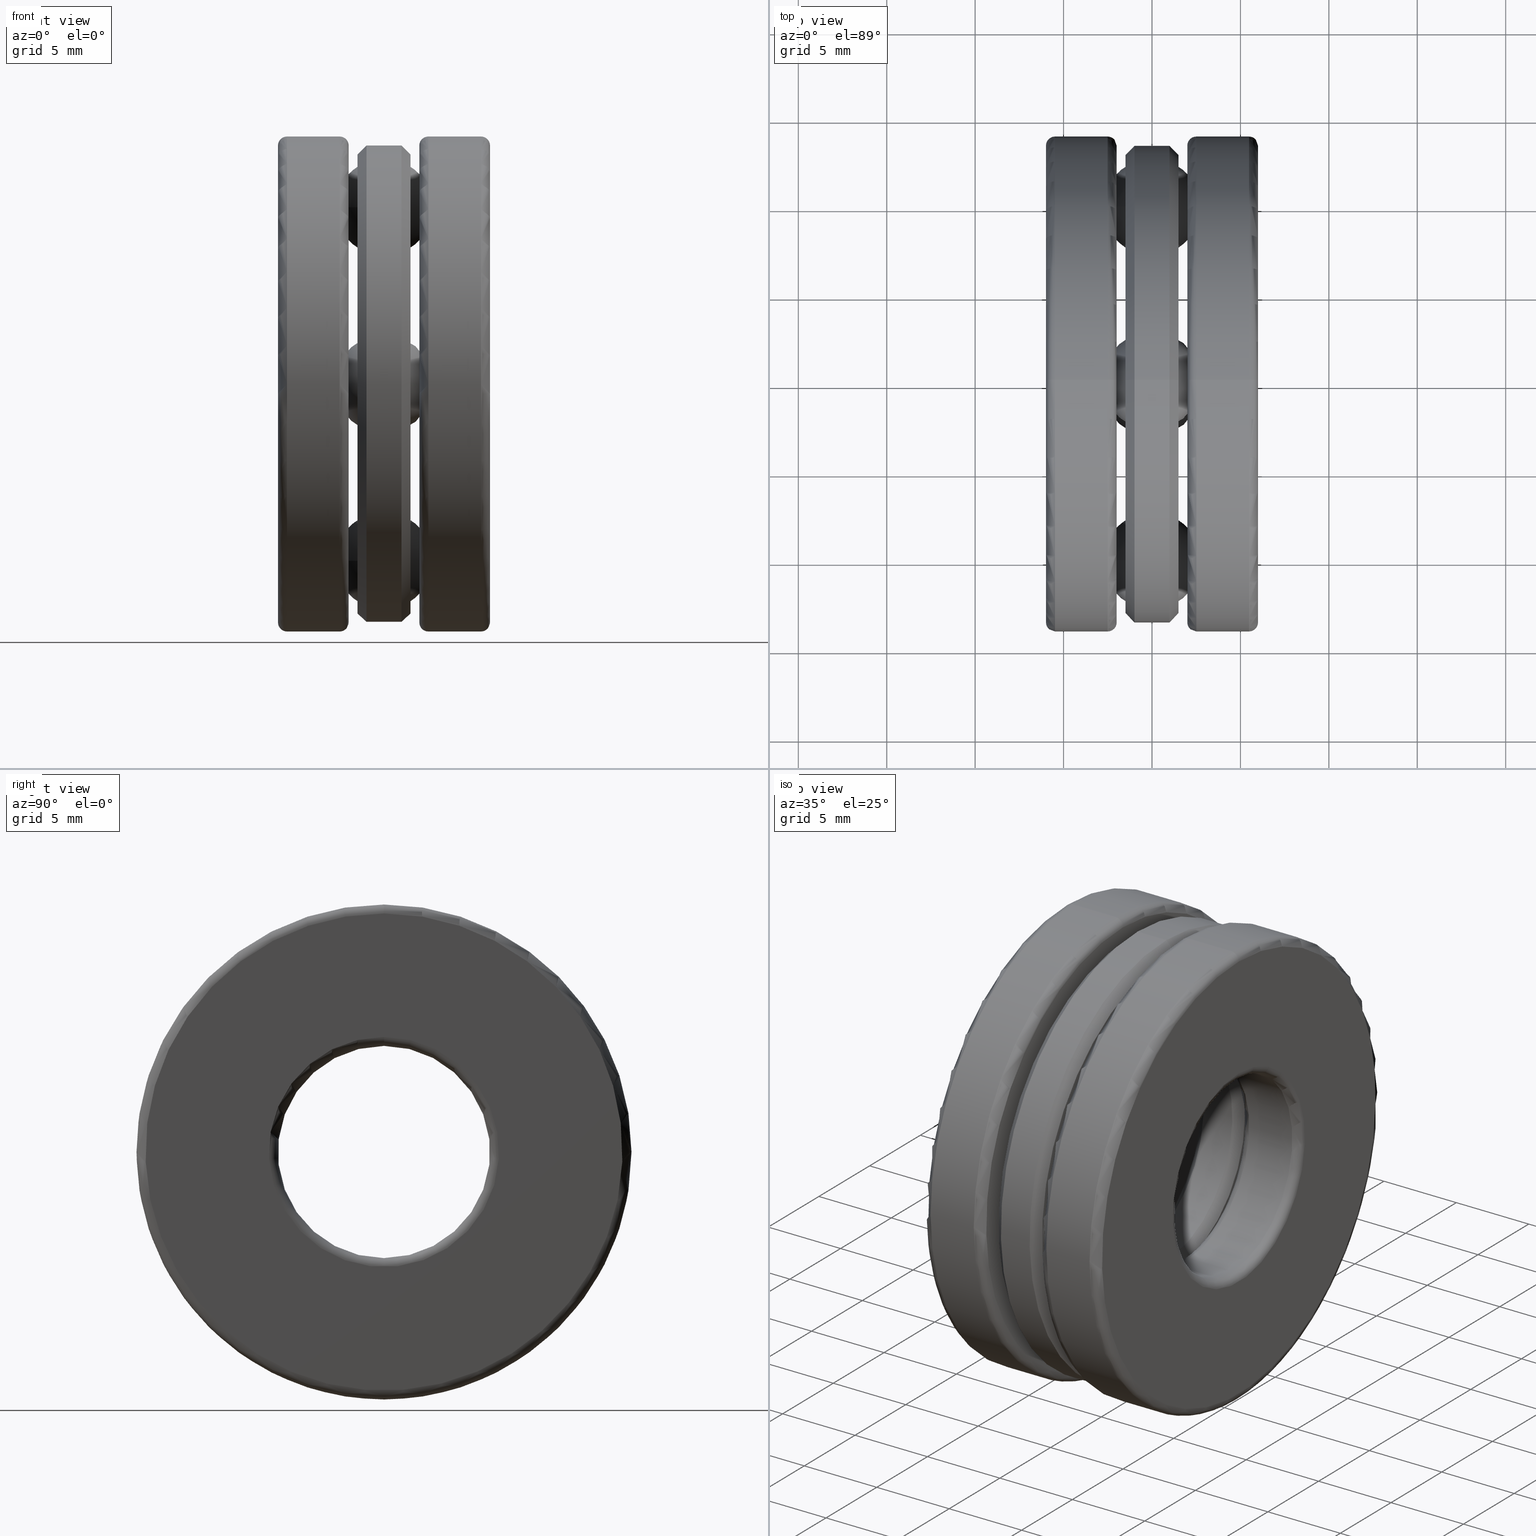
[diagram: canonical four-view strip — front | top / right | iso, engineering-drawing reading convention]
A machine part, canonical four-view strip (front | top / right | iso — engineering-drawing reading convention). The complete STEP part file that produces these views, byte-faithful:
ISO-10303-21;
HEADER;
FILE_DESCRIPTION (( 'STEP AP203' ),
    '1' );
FILE_NAME ('2901.STEP',
    '2017-03-21T12:18:39',
    ( '' ),
    ( '' ),
    'SwSTEP 2.0',
    'SolidWorks 2017',
    '' );
FILE_SCHEMA (( 'CONFIG_CONTROL_DESIGN' ));
ENDSEC;

DATA;
#1 = DIRECTION ( 'NONE',  ( -1.000000000000000000, -0.0000000000000000000, -0.0000000000000000000 ) ) ;
#2 = EDGE_LOOP ( 'NONE', ( #385 ) ) ;
#3 = TOROIDAL_SURFACE ( 'NONE', #74, 0.2562204724409448700, 0.01999999999999995900 ) ;
#4 = DATE_TIME_ROLE ( 'classification_date' ) ;
#5 = CARTESIAN_POINT ( 'NONE',  ( -0.07866823999999994500, 0.0000000000000000000, 0.0000000000000000000 ) ) ;
#6 = VERTEX_POINT ( 'NONE', #744 ) ;
#7 = EDGE_CURVE ( 'NONE', #526, #526, #804, .T. ) ;
#8 = AXIS2_PLACEMENT_3D ( 'NONE', #79, #348, #602 ) ;
#9 = EDGE_LOOP ( 'NONE', ( #27 ) ) ;
#10 = EDGE_LOOP ( 'NONE', ( #22 ) ) ;
#11 = TOROIDAL_SURFACE ( 'NONE', #323, 0.5310000000000000300, 0.01999999999999999000 ) ;
#12 = DIRECTION ( 'NONE',  ( 0.0000000000000000000, 0.0000000000000000000, -1.000000000000000000 ) ) ;
#13 = ORIENTED_EDGE ( 'NONE', *, *, #658, .F. ) ;
#14 = MANIFOLD_SOLID_BREP ( 'BALLS[1]', #487 ) ;
#15 = VERTEX_POINT ( 'NONE', #51 ) ;
#16 = CARTESIAN_POINT ( 'NONE',  ( -0.07866823999999994500, 0.0000000000000000000, 0.0000000000000000000 ) ) ;
#17 = AXIS2_PLACEMENT_3D ( 'NONE', #290, #596, #360 ) ;
#18 = ORIENTED_EDGE ( 'NONE', *, *, #605, .T. ) ;
#19 = ORIENTED_EDGE ( 'NONE', *, *, #342, .T. ) ;
#20 = DIRECTION ( 'NONE',  ( -1.000000000000000000, -0.0000000000000000000, -0.0000000000000000000 ) ) ;
#21 = FACE_OUTER_BOUND ( 'NONE', #188, .T. ) ;
#22 = ORIENTED_EDGE ( 'NONE', *, *, #605, .F. ) ;
#23 = FACE_BOUND ( 'NONE', #513, .T. ) ;
#24 = DIRECTION ( 'NONE',  ( 0.0000000000000000000, 0.0000000000000000000, 1.000000000000000000 ) ) ;
#25 = CIRCLE ( 'NONE', #48, 0.5310000000000001400 ) ;
#26 = DIRECTION ( 'NONE',  ( -1.000000000000000000, 0.0000000000000000000, -0.0000000000000000000 ) ) ;
#27 = ORIENTED_EDGE ( 'NONE', *, *, #314, .T. ) ;
#28 = FACE_OUTER_BOUND ( 'NONE', #102, .T. ) ;
#29 = AXIS2_PLACEMENT_3D ( 'NONE', #64, #709, #65 ) ;
#30 = DIRECTION ( 'NONE',  ( 1.000000000000000000, 0.0000000000000000000, 0.0000000000000000000 ) ) ;
#31 = ADVANCED_BREP_SHAPE_REPRESENTATION ( '2901', ( #571, #289, #211, #157, #14, #302, #798, #566 ), #197 ) ;
#32 = DIRECTION ( 'NONE',  ( 1.000000000000000000, 0.0000000000000000000, 0.0000000000000000000 ) ) ;
#33 = EDGE_LOOP ( 'NONE', ( #731 ) ) ;
#34 = ADVANCED_FACE ( 'NONE', ( #648, #639 ), #299, .T. ) ;
#35 = FACE_OUTER_BOUND ( 'NONE', #2, .T. ) ;
#36 = FACE_OUTER_BOUND ( 'NONE', #763, .T. ) ;
#37 = PERSON_AND_ORGANIZATION ( #201, #690 ) ;
#38 = AXIS2_PLACEMENT_3D ( 'NONE', #615, #558, #808 ) ;
#39 = DIRECTION ( 'NONE',  ( -1.000000000000000000, -0.0000000000000000000, -0.0000000000000000000 ) ) ;
#40 = DIRECTION ( 'NONE',  ( 1.000000000000000000, 0.0000000000000000000, 0.0000000000000000000 ) ) ;
#41 = SECURITY_CLASSIFICATION ( '', '', #198 ) ;
#42 = CARTESIAN_POINT ( 'NONE',  ( 0.03900000000000004200, 0.0000000000000000000, 0.2562204724409448700 ) ) ;
#43 = DIRECTION ( 'NONE',  ( 0.0000000000000000000, 0.0000000000000000000, -1.000000000000000000 ) ) ;
#44 = CYLINDRICAL_SURFACE ( 'NONE', #70, 0.2562204724409448700 ) ;
#45 = CARTESIAN_POINT ( 'NONE',  ( 0.09866824000000055900, 0.0000000000000000000, 0.2362204724409449100 ) ) ;
#46 = ADVANCED_FACE ( 'NONE', ( #754, #469 ), #730, .F. ) ;
#47 = DIRECTION ( 'NONE',  ( 0.0000000000000000000, 0.0000000000000000000, 1.000000000000000000 ) ) ;
#48 = AXIS2_PLACEMENT_3D ( 'NONE', #242, #39, #608 ) ;
#49 = APPROVAL_STATUS ( 'not_yet_approved' ) ;
#50 = CARTESIAN_POINT ( 'NONE',  ( 0.09866824000000055900, 0.0000000000000000000, 0.0000000000000000000 ) ) ;
#51 = CARTESIAN_POINT ( 'NONE',  ( -0.2160000000000000000, 0.0000000000000000000, 0.5510000000000000500 ) ) ;
#52 = ORIENTED_EDGE ( 'NONE', *, *, #171, .T. ) ;
#53 = EDGE_LOOP ( 'NONE', ( #604 ) ) ;
#54 = DIRECTION ( 'NONE',  ( 0.0000000000000000000, 0.0000000000000000000, 1.000000000000000000 ) ) ;
#55 = CIRCLE ( 'NONE', #613, 0.2362204724409449100 ) ;
#56 =( NAMED_UNIT ( * ) PLANE_ANGLE_UNIT ( ) SI_UNIT ( $, .RADIAN. ) );
#57 = CLOSED_SHELL ( 'NONE', ( #425 ) ) ;
#58 = CIRCLE ( 'NONE', #17, 0.5509999999999999300 ) ;
#59 = APPROVAL_DATE_TIME ( #320, #823 ) ;
#60 = DESIGN_CONTEXT ( 'detailed design', #390, 'design' ) ;
#61 = UNCERTAINTY_MEASURE_WITH_UNIT (LENGTH_MEASURE( 1.000000000000000100E-005 ), #626, 'distance_accuracy_value', 'NONE');
#62 = FACE_OUTER_BOUND ( 'NONE', #313, .T. ) ;
#63 = PLANE ( 'NONE',  #29 ) ;
#64 = CARTESIAN_POINT ( 'NONE',  ( 0.07866824000000059700, -4.888229745457297900E-018, 0.0000000000000000000 ) ) ;
#65 = DIRECTION ( 'NONE',  ( 0.0000000000000000000, 0.0000000000000000000, -1.000000000000000000 ) ) ;
#66 = EDGE_LOOP ( 'NONE', ( #597 ) ) ;
#67 = APPROVAL_ROLE ( '' ) ;
#68 = FACE_BOUND ( 'NONE', #725, .T. ) ;
#69 = DIRECTION ( 'NONE',  ( -1.000000000000000000, -0.0000000000000000000, -0.0000000000000000000 ) ) ;
#70 = AXIS2_PLACEMENT_3D ( 'NONE', #758, #133, #392 ) ;
#71 = DIRECTION ( 'NONE',  ( 1.000000000000000000, 0.0000000000000000000, 0.0000000000000000000 ) ) ;
#72 = ORIENTED_EDGE ( 'NONE', *, *, #784, .T. ) ;
#73 = FACE_OUTER_BOUND ( 'NONE', #410, .T. ) ;
#74 = AXIS2_PLACEMENT_3D ( 'NONE', #153, #539, #414 ) ;
#75 = EDGE_LOOP ( 'NONE', ( #655 ) ) ;
#76 = PERSON_AND_ORGANIZATION ( #201, #690 ) ;
#77 = CARTESIAN_POINT ( 'NONE',  ( -0.05900000000000000400, 0.3936102362204724800, -8.611099146760528000E-018 ) ) ;
#78 = CIRCLE ( 'NONE', #759, 0.5310000000000000300 ) ;
#79 = CARTESIAN_POINT ( 'NONE',  ( 0.0000000000000000000, 0.0000000000000000000, 0.0000000000000000000 ) ) ;
#80 = AXIS2_PLACEMENT_3D ( 'NONE', #89, #794, #224 ) ;
#81 = DIRECTION ( 'NONE',  ( 0.0000000000000000000, 0.0000000000000000000, 1.000000000000000000 ) ) ;
#82 = ORIENTED_EDGE ( 'NONE', *, *, #463, .T. ) ;
#83 = EDGE_CURVE ( 'NONE', #681, #681, #782, .T. ) ;
#84 = CIRCLE ( 'NONE', #769, 0.1145000000000000000 ) ;
#85 = CC_DESIGN_PERSON_AND_ORGANIZATION_ASSIGNMENT ( #37, #271, ( #660 ) ) ;
#86 = DIRECTION ( 'NONE',  ( -1.000000000000000000, -0.0000000000000000000, -0.0000000000000000000 ) ) ;
#87 = CALENDAR_DATE ( 2017, 21, 3 ) ;
#88 = TOROIDAL_SURFACE ( 'NONE', #99, 0.5310000000000000300, 0.01999999999999970200 ) ;
#89 = CARTESIAN_POINT ( 'NONE',  ( 0.07866824000000058300, 0.0000000000000000000, 0.0000000000000000000 ) ) ;
#90 = EDGE_LOOP ( 'NONE', ( #628 ) ) ;
#91 = CARTESIAN_POINT ( 'NONE',  ( 0.2360000000000003200, 0.0000000000000000000, 0.0000000000000000000 ) ) ;
#92 = DIRECTION ( 'NONE',  ( 1.000000000000000000, 0.0000000000000000000, 0.0000000000000000000 ) ) ;
#93 = FACE_OUTER_BOUND ( 'NONE', #699, .T. ) ;
#94 = AXIS2_PLACEMENT_3D ( 'NONE', #795, #92, #547 ) ;
#95 = DIRECTION ( 'NONE',  ( -1.000000000000000000, -0.0000000000000000000, -0.0000000000000000000 ) ) ;
#96 = ADVANCED_FACE ( 'NONE', ( #93, #255 ), #503, .F. ) ;
#97 = FACE_OUTER_BOUND ( 'NONE', #388, .T. ) ;
#98 = EDGE_CURVE ( 'NONE', #287, #287, #336, .T. ) ;
#99 = AXIS2_PLACEMENT_3D ( 'NONE', #475, #86, #352 ) ;
#100 = CARTESIAN_POINT ( 'NONE',  ( 0.2360000000000002900, 2.932879189690569000E-017, 0.0000000000000000000 ) ) ;
#101 = EDGE_LOOP ( 'NONE', ( #479 ) ) ;
#102 = EDGE_LOOP ( 'NONE', ( #770 ) ) ;
#103 = ORIENTED_EDGE ( 'NONE', *, *, #821, .F. ) ;
#104 = DIRECTION ( 'NONE',  ( 1.000000000000000000, -0.0000000000000000000, -0.0000000000000000000 ) ) ;
#105 = FACE_OUTER_BOUND ( 'NONE', #415, .T. ) ;
#106 = DIRECTION ( 'NONE',  ( 0.0000000000000000000, 0.0000000000000000000, 1.000000000000000000 ) ) ;
#107 = CARTESIAN_POINT ( 'NONE',  ( 0.09866824000000055900, 0.0000000000000000000, 0.5509999999999999300 ) ) ;
#108 = FACE_OUTER_BOUND ( 'NONE', #344, .T. ) ;
#109 = DIRECTION ( 'NONE',  ( 0.0000000000000000000, 0.0000000000000000000, 1.000000000000000000 ) ) ;
#110 = ADVANCED_FACE ( 'NONE', ( #417, #735 ), #231, .F. ) ;
#111 = CARTESIAN_POINT ( 'NONE',  ( -0.05900000000000000400, 0.3936102362204724800, -0.1145000000000000200 ) ) ;
#112 = CARTESIAN_POINT ( 'NONE',  ( -0.05899999999999998300, 0.0000000000000000000, 0.0000000000000000000 ) ) ;
#113 = EDGE_LOOP ( 'NONE', ( #395 ) ) ;
#114 = AXIS2_PLACEMENT_3D ( 'NONE', #578, #760, #450 ) ;
#115 = ORIENTED_EDGE ( 'NONE', *, *, #636, .T. ) ;
#116 = CARTESIAN_POINT ( 'NONE',  ( -0.03900000000000000700, 0.0000000000000000000, 0.5310000000000001400 ) ) ;
#117 = ADVANCED_FACE ( 'NONE', ( #156, #452 ), #317, .T. ) ;
#118 = EDGE_LOOP ( 'NONE', ( #533 ) ) ;
#119 = DIRECTION ( 'NONE',  ( 1.000000000000000000, 0.0000000000000000000, 0.0000000000000000000 ) ) ;
#120 = FACE_OUTER_BOUND ( 'NONE', #152, .T. ) ;
#121 = ORIENTED_EDGE ( 'NONE', *, *, #658, .T. ) ;
#122 = EDGE_CURVE ( 'NONE', #650, #650, #570, .T. ) ;
#123 = LOCAL_TIME ( 8, 18, 39.00000000000000000, #633 ) ;
#124 = DIRECTION ( 'NONE',  ( 0.0000000000000000000, 0.0000000000000000000, 1.000000000000000000 ) ) ;
#125 = APPROVAL ( #394, 'UNSPECIFIED' ) ;
#126 = VERTEX_POINT ( 'NONE', #173 ) ;
#127 = MECHANICAL_CONTEXT ( 'NONE', #250, 'mechanical' ) ;
#128 = CARTESIAN_POINT ( 'NONE',  ( 0.07866824000000058300, 0.0000000000000000000, 0.0000000000000000000 ) ) ;
#129 = EDGE_LOOP ( 'NONE', ( #402 ) ) ;
#130 = DIRECTION ( 'NONE',  ( 0.0000000000000000000, 0.0000000000000000000, 1.000000000000000000 ) ) ;
#131 = TOROIDAL_SURFACE ( 'NONE', #632, 0.3936102362204725300, 0.1105000000000000000 ) ;
#132 = VERTEX_POINT ( 'NONE', #434 ) ;
#133 = DIRECTION ( 'NONE',  ( -1.000000000000000000, -0.0000000000000000000, -0.0000000000000000000 ) ) ;
#134 = EDGE_LOOP ( 'NONE', ( #178 ) ) ;
#135 = AXIS2_PLACEMENT_3D ( 'NONE', #620, #307, #555 ) ;
#136 = CARTESIAN_POINT ( 'NONE',  ( -0.09866823999999993500, 0.0000000000000000000, 0.0000000000000000000 ) ) ;
#137 = EDGE_LOOP ( 'NONE', ( #399 ) ) ;
#138 = FACE_OUTER_BOUND ( 'NONE', #90, .T. ) ;
#139 = ORIENTED_EDGE ( 'NONE', *, *, #270, .T. ) ;
#140 = DIRECTION ( 'NONE',  ( 0.0000000000000000000, 0.0000000000000000000, 1.000000000000000000 ) ) ;
#141 = COORDINATED_UNIVERSAL_TIME_OFFSET ( 5, 0, .BEHIND. ) ;
#142 = CARTESIAN_POINT ( 'NONE',  ( -0.05899999999999999700, 0.5110000000000001200, 0.0000000000000000000 ) ) ;
#143 = EDGE_LOOP ( 'NONE', ( #762 ) ) ;
#144 = EDGE_CURVE ( 'NONE', #721, #721, #209, .T. ) ;
#145 = EDGE_LOOP ( 'NONE', ( #19 ) ) ;
#146 = CC_DESIGN_PERSON_AND_ORGANIZATION_ASSIGNMENT ( #246, #703, ( #41 ) ) ;
#147 = DIRECTION ( 'NONE',  ( 0.0000000000000000000, 0.0000000000000000000, 1.000000000000000000 ) ) ;
#148 = EDGE_LOOP ( 'NONE', ( #18 ) ) ;
#149 = CONICAL_SURFACE ( 'NONE', #460, 0.5110000000000001200, 0.7853981633974482800 ) ;
#150 = CARTESIAN_POINT ( 'NONE',  ( -0.07866823999999994500, 0.0000000000000000000, 0.0000000000000000000 ) ) ;
#151 = CARTESIAN_POINT ( 'NONE',  ( -0.2160000000000000000, 0.0000000000000000000, 0.0000000000000000000 ) ) ;
#152 = EDGE_LOOP ( 'NONE', ( #750 ) ) ;
#153 = CARTESIAN_POINT ( 'NONE',  ( -0.2160000000000000000, 0.0000000000000000000, 0.0000000000000000000 ) ) ;
#154 = EDGE_LOOP ( 'NONE', ( #207 ) ) ;
#155 = AXIS2_PLACEMENT_3D ( 'NONE', #372, #179, #746 ) ;
#156 = FACE_OUTER_BOUND ( 'NONE', #688, .T. ) ;
#157 = MANIFOLD_SOLID_BREP ( 'HOLES', #328 ) ;
#158 = DIRECTION ( 'NONE',  ( 0.0000000000000000000, 0.0000000000000000000, -1.000000000000000000 ) ) ;
#159 = CARTESIAN_POINT ( 'NONE',  ( -0.2359999999999999600, -0.3936102362204724800, -3.959225244314298700E-017 ) ) ;
#160 = ADVANCED_FACE ( 'NONE', ( #482, #616 ), #498, .F. ) ;
#161 = ORIENTED_EDGE ( 'NONE', *, *, #494, .F. ) ;
#162 = DIRECTION ( 'NONE',  ( 0.0000000000000000000, 0.0000000000000000000, -1.000000000000000000 ) ) ;
#163 = FACE_BOUND ( 'NONE', #630, .T. ) ;
#164 = ORIENTED_EDGE ( 'NONE', *, *, #282, .F. ) ;
#165 = FACE_BOUND ( 'NONE', #252, .T. ) ;
#166 = LOCAL_TIME ( 8, 18, 39.00000000000000000, #702 ) ;
#167 = DIRECTION ( 'NONE',  ( 0.0000000000000000000, 0.0000000000000000000, 1.000000000000000000 ) ) ;
#168 = VERTEX_POINT ( 'NONE', #564 ) ;
#169 = DIRECTION ( 'NONE',  ( 0.0000000000000000000, 0.0000000000000000000, 1.000000000000000000 ) ) ;
#170 = DIRECTION ( 'NONE',  ( 0.0000000000000000000, 0.0000000000000000000, -1.000000000000000000 ) ) ;
#171 = EDGE_CURVE ( 'NONE', #599, #599, #229, .T. ) ;
#172 = PRODUCT_RELATED_PRODUCT_CATEGORY ( 'detail', '', ( #273 ) ) ;
#173 = CARTESIAN_POINT ( 'NONE',  ( -0.09866823999999993500, 0.0000000000000000000, 0.5510000000000000500 ) ) ;
#174 = ADVANCED_FACE ( 'NONE', ( #163, #208 ), #581, .T. ) ;
#175 = FACE_OUTER_BOUND ( 'NONE', #148, .T. ) ;
#176 = DIRECTION ( 'NONE',  ( 0.0000000000000000000, 0.0000000000000000000, 1.000000000000000000 ) ) ;
#177 = EDGE_CURVE ( 'NONE', #775, #775, #726, .T. ) ;
#178 = ORIENTED_EDGE ( 'NONE', *, *, #673, .F. ) ;
#179 = DIRECTION ( 'NONE',  ( -1.000000000000000000, -0.0000000000000000000, -0.0000000000000000000 ) ) ;
#180 = AXIS2_PLACEMENT_3D ( 'NONE', #677, #489, #683 ) ;
#181 = ADVANCED_FACE ( 'NONE', ( #175, #416 ), #710, .F. ) ;
#182 = DIRECTION ( 'NONE',  ( -1.000000000000000000, -0.0000000000000000000, -0.0000000000000000000 ) ) ;
#183 = VERTEX_POINT ( 'NONE', #319 ) ;
#184 = DIRECTION ( 'NONE',  ( 0.0000000000000000000, 0.0000000000000000000, 1.000000000000000000 ) ) ;
#185 = PERSON_AND_ORGANIZATION_ROLE ( 'creator' ) ;
#186 = CARTESIAN_POINT ( 'NONE',  ( 0.09866824000000055900, 0.0000000000000000000, 0.0000000000000000000 ) ) ;
#187 = AXIS2_PLACEMENT_3D ( 'NONE', #206, #524, #652 ) ;
#188 = EDGE_LOOP ( 'NONE', ( #164 ) ) ;
#189 =( LENGTH_UNIT ( ) NAMED_UNIT ( * ) SI_UNIT ( $, .METRE. ) );
#190 = DIRECTION ( 'NONE',  ( -1.000000000000000000, -0.0000000000000000000, -0.0000000000000000000 ) ) ;
#191 = TOROIDAL_SURFACE ( 'NONE', #266, 0.2562204724409449200, 0.01999999999999971900 ) ;
#192 = EDGE_LOOP ( 'NONE', ( #654 ) ) ;
#193 = FACE_OUTER_BOUND ( 'NONE', #715, .T. ) ;
#194 = EDGE_CURVE ( 'NONE', #680, #680, #200, .T. ) ;
#195 = PERSON_AND_ORGANIZATION ( #201, #690 ) ;
#196 = DIRECTION ( 'NONE',  ( -1.000000000000000000, -0.0000000000000000000, -0.0000000000000000000 ) ) ;
#197 =( GEOMETRIC_REPRESENTATION_CONTEXT ( 3 ) GLOBAL_UNCERTAINTY_ASSIGNED_CONTEXT ( ( #61 ) ) GLOBAL_UNIT_ASSIGNED_CONTEXT ( ( #626, #56, #380 ) ) REPRESENTATION_CONTEXT ( 'NONE', 'WORKASPACE' ) );
#198 = SECURITY_CLASSIFICATION_LEVEL ( 'unclassified' ) ;
#199 = EDGE_LOOP ( 'NONE', ( #275 ) ) ;
#200 = CIRCLE ( 'NONE', #261, 0.5310000000000000300 ) ;
#201 = PERSON ( 'UNSPECIFIED', 'UNSPECIFIED', 'UNSPECIFIED', ('UNSPECIFIED'), ('UNSPECIFIED'), ('UNSPECIFIED') ) ;
#202 = CYLINDRICAL_SURFACE ( 'NONE', #438, 0.2362204724409450200 ) ;
#203 = AXIS2_PLACEMENT_3D ( 'NONE', #584, #341, #651 ) ;
#204 = DIRECTION ( 'NONE',  ( -1.000000000000000000, -0.0000000000000000000, -0.0000000000000000000 ) ) ;
#205 = EDGE_LOOP ( 'NONE', ( #115 ) ) ;
#206 = CARTESIAN_POINT ( 'NONE',  ( 2.410167579495174300E-017, 0.3936102362204725300, 0.0000000000000000000 ) ) ;
#207 = ORIENTED_EDGE ( 'NONE', *, *, #592, .T. ) ;
#208 = FACE_OUTER_BOUND ( 'NONE', #251, .T. ) ;
#209 = CIRCLE ( 'NONE', #645, 0.2762204724409448900 ) ;
#210 = CIRCLE ( 'NONE', #797, 0.2562204724409448700 ) ;
#211 = MANIFOLD_SOLID_BREP ( 'BALL', #57 ) ;
#212 = VERTEX_POINT ( 'NONE', #623 ) ;
#213 = FACE_OUTER_BOUND ( 'NONE', #129, .T. ) ;
#214 = DIRECTION ( 'NONE',  ( 0.0000000000000000000, 0.0000000000000000000, 1.000000000000000000 ) ) ;
#215 = ORIENTED_EDGE ( 'NONE', *, *, #784, .F. ) ;
#216 = ORIENTED_EDGE ( 'NONE', *, *, #673, .T. ) ;
#217 = AXIS2_PLACEMENT_3D ( 'NONE', #50, #249, #106 ) ;
#218 = CARTESIAN_POINT ( 'NONE',  ( 0.05900000000000000400, 0.5110000000000001200, 0.0000000000000000000 ) ) ;
#219 = FACE_OUTER_BOUND ( 'NONE', #400, .T. ) ;
#220 = DATE_AND_TIME ( #87, #444 ) ;
#221 = CARTESIAN_POINT ( 'NONE',  ( -0.2160000000000000000, 0.0000000000000000000, 0.0000000000000000000 ) ) ;
#222 = EDGE_CURVE ( 'NONE', #473, #473, #55, .T. ) ;
#223 = CC_DESIGN_DATE_AND_TIME_ASSIGNMENT ( #472, #4, ( #41 ) ) ;
#224 = DIRECTION ( 'NONE',  ( 0.0000000000000000000, 0.0000000000000000000, 1.000000000000000000 ) ) ;
#225 = DIRECTION ( 'NONE',  ( 0.0000000000000000000, 0.0000000000000000000, -1.000000000000000000 ) ) ;
#226 = CARTESIAN_POINT ( 'NONE',  ( -0.2359999999999999600, 0.3936102362204724800, -8.611099146760528000E-018 ) ) ;
#227 = ORIENTED_EDGE ( 'NONE', *, *, #144, .T. ) ;
#228 = ORIENTED_EDGE ( 'NONE', *, *, #449, .T. ) ;
#229 = CIRCLE ( 'NONE', #714, 0.2562204724409448700 ) ;
#230 = AXIS2_PLACEMENT_3D ( 'NONE', #423, #30, #225 ) ;
#231 = CONICAL_SURFACE ( 'NONE', #545, 0.2762204724409448900, 0.7853981633974479500 ) ;
#232 = CARTESIAN_POINT ( 'NONE',  ( 2.410167579495174300E-017, 4.122848383624252400E-015, 0.3936102362204725300 ) ) ;
#233 = FACE_OUTER_BOUND ( 'NONE', #10, .T. ) ;
#234 = PERSON_AND_ORGANIZATION ( #201, #690 ) ;
#235 = ADVANCED_FACE ( 'NONE', ( #458, #411 ), #440, .T. ) ;
#236 = CARTESIAN_POINT ( 'NONE',  ( -0.2359999999999999600, -6.369392823809474900E-017, 0.3936102362204724800 ) ) ;
#237 = FACE_OUTER_BOUND ( 'NONE', #717, .T. ) ;
#238 = EDGE_CURVE ( 'NONE', #183, #183, #716, .T. ) ;
#239 = APPROVAL ( #766, 'UNSPECIFIED' ) ;
#240 = DIRECTION ( 'NONE',  ( -1.000000000000000000, -0.0000000000000000000, -0.0000000000000000000 ) ) ;
#241 = ADVANCED_FACE ( 'NONE', ( #276, #219 ), #752, .T. ) ;
#242 = CARTESIAN_POINT ( 'NONE',  ( -0.03900000000000000700, 0.0000000000000000000, 0.0000000000000000000 ) ) ;
#243 = DIRECTION ( 'NONE',  ( 0.0000000000000000000, 0.0000000000000000000, 1.000000000000000000 ) ) ;
#244 = FACE_OUTER_BOUND ( 'NONE', #205, .T. ) ;
#245 = CARTESIAN_POINT ( 'NONE',  ( 0.2360000000000002900, 0.0000000000000000000, 0.5310000000000000300 ) ) ;
#246 = PERSON_AND_ORGANIZATION ( #201, #690 ) ;
#247 = CARTESIAN_POINT ( 'NONE',  ( -0.05900000000000000400, -6.369392823809474900E-017, 0.3936102362204724800 ) ) ;
#248 = CARTESIAN_POINT ( 'NONE',  ( 0.2160000000000006100, 0.0000000000000000000, 0.2362204724409452100 ) ) ;
#249 = DIRECTION ( 'NONE',  ( -1.000000000000000000, -0.0000000000000000000, -0.0000000000000000000 ) ) ;
#250 = APPLICATION_CONTEXT ( 'configuration controlled 3d designs of mechanical parts and assemblies' ) ;
#251 = EDGE_LOOP ( 'NONE', ( #72 ) ) ;
#252 = EDGE_LOOP ( 'NONE', ( #82 ) ) ;
#253 = CIRCLE ( 'NONE', #114, 0.5310000000000000300 ) ;
#254 = DATE_TIME_ROLE ( 'creation_date' ) ;
#255 = FACE_BOUND ( 'NONE', #456, .T. ) ;
#256 = DIRECTION ( 'NONE',  ( -1.000000000000000000, -0.0000000000000000000, -0.0000000000000000000 ) ) ;
#257 = CC_DESIGN_PERSON_AND_ORGANIZATION_ASSIGNMENT ( #234, #817, ( #273 ) ) ;
#258 = CARTESIAN_POINT ( 'NONE',  ( 0.05900000000000000400, 1.118972798279982700E-016, -0.2791102362204724300 ) ) ;
#259 = FACE_OUTER_BOUND ( 'NONE', #143, .T. ) ;
#260 = CARTESIAN_POINT ( 'NONE',  ( 0.2160000000000006100, 0.0000000000000000000, 0.0000000000000000000 ) ) ;
#261 = AXIS2_PLACEMENT_3D ( 'NONE', #509, #691, #384 ) ;
#262 = ORIENTED_EDGE ( 'NONE', *, *, #342, .F. ) ;
#263 = CARTESIAN_POINT ( 'NONE',  ( 0.05900000000000000400, 0.3936102362204724800, -8.611099146760528000E-018 ) ) ;
#264 = EDGE_LOOP ( 'NONE', ( #500 ) ) ;
#265 = CARTESIAN_POINT ( 'NONE',  ( -0.09866823999999993500, 0.0000000000000000000, 0.0000000000000000000 ) ) ;
#266 = AXIS2_PLACEMENT_3D ( 'NONE', #260, #454, #326 ) ;
#267 = VERTEX_POINT ( 'NONE', #446 ) ;
#268 = CYLINDRICAL_SURFACE ( 'NONE', #675, 0.1144999999999999600 ) ;
#269 = PERSON_AND_ORGANIZATION_ROLE ( 'design_supplier' ) ;
#270 = EDGE_CURVE ( 'NONE', #297, #297, #84, .T. ) ;
#271 = PERSON_AND_ORGANIZATION_ROLE ( 'creator' ) ;
#272 = AXIS2_PLACEMENT_3D ( 'NONE', #301, #428, #162 ) ;
#273 = PRODUCT ( '2901', '2901', '', ( #127 ) ) ;
#274 = DIRECTION ( 'NONE',  ( -1.000000000000000000, -0.0000000000000000000, -0.0000000000000000000 ) ) ;
#275 = ORIENTED_EDGE ( 'NONE', *, *, #222, .F. ) ;
#276 = FACE_OUTER_BOUND ( 'NONE', #199, .T. ) ;
#277 = DIRECTION ( 'NONE',  ( 1.000000000000000000, 0.0000000000000000000, 0.0000000000000000000 ) ) ;
#278 = EDGE_LOOP ( 'NONE', ( #161 ) ) ;
#279 = PERSON_AND_ORGANIZATION ( #201, #690 ) ;
#280 = VERTEX_POINT ( 'NONE', #321 ) ;
#281 = AXIS2_PLACEMENT_3D ( 'NONE', #322, #256, #332 ) ;
#282 = EDGE_CURVE ( 'NONE', #126, #126, #542, .T. ) ;
#283 = CC_DESIGN_PERSON_AND_ORGANIZATION_ASSIGNMENT ( #279, #269, ( #660 ) ) ;
#284 = EDGE_LOOP ( 'NONE', ( #216 ) ) ;
#285 = CIRCLE ( 'NONE', #732, 0.2362204724409449100 ) ;
#286 = CARTESIAN_POINT ( 'NONE',  ( 2.410167579495174300E-017, -0.3936102362204725300, 0.0000000000000000000 ) ) ;
#287 = VERTEX_POINT ( 'NONE', #499 ) ;
#288 = FACE_OUTER_BOUND ( 'NONE', #374, .T. ) ;
#289 = MANIFOLD_SOLID_BREP ( 'BOTTOM', #439 ) ;
#290 = CARTESIAN_POINT ( 'NONE',  ( 0.09866824000000055900, 0.0000000000000000000, 0.0000000000000000000 ) ) ;
#291 = EDGE_LOOP ( 'NONE', ( #376 ) ) ;
#292 = FACE_BOUND ( 'NONE', #442, .T. ) ;
#293 = ORIENTED_EDGE ( 'NONE', *, *, #122, .F. ) ;
#294 = ADVANCED_FACE ( 'NONE', ( #742, #244 ), #63, .F. ) ;
#295 = DIRECTION ( 'NONE',  ( 0.0000000000000000000, 0.0000000000000000000, 1.000000000000000000 ) ) ;
#296 = EDGE_CURVE ( 'NONE', #506, #506, #589, .T. ) ;
#297 = VERTEX_POINT ( 'NONE', #747 ) ;
#298 = DIRECTION ( 'NONE',  ( -1.000000000000000000, -0.0000000000000000000, -0.0000000000000000000 ) ) ;
#299 = PLANE ( 'NONE',  #230 ) ;
#300 = ORIENTED_EDGE ( 'NONE', *, *, #282, .T. ) ;
#301 = CARTESIAN_POINT ( 'NONE',  ( -0.2359999999999999600, 1.118972798279982700E-016, -0.3936102362204724800 ) ) ;
#302 = MANIFOLD_SOLID_BREP ( 'BALLS[2]', #664 ) ;
#303 = AXIS2_PLACEMENT_3D ( 'NONE', #462, #20, #407 ) ;
#304 = ORIENTED_EDGE ( 'NONE', *, *, #821, .T. ) ;
#305 = FACE_BOUND ( 'NONE', #665, .T. ) ;
#306 = CARTESIAN_POINT ( 'NONE',  ( -0.09866823999999993500, 0.0000000000000000000, 0.0000000000000000000 ) ) ;
#307 = DIRECTION ( 'NONE',  ( 0.0000000000000000000, 1.000000000000000000, -3.491481338843133700E-015 ) ) ;
#308 = ADVANCED_FACE ( 'NONE', ( #396, #73 ), #191, .T. ) ;
#309 = DIRECTION ( 'NONE',  ( -1.000000000000000000, -0.0000000000000000000, -0.0000000000000000000 ) ) ;
#310 = AXIS2_PLACEMENT_3D ( 'NONE', #776, #591, #771 ) ;
#311 = CARTESIAN_POINT ( 'NONE',  ( -0.07866823999999994500, 0.0000000000000000000, 0.5310000000000000300 ) ) ;
#312 = ADVANCED_FACE ( 'NONE', ( #377, #35 ), #44, .F. ) ;
#313 = EDGE_LOOP ( 'NONE', ( #103 ) ) ;
#314 = EDGE_CURVE ( 'NONE', #212, #212, #523, .T. ) ;
#315 = EDGE_LOOP ( 'NONE', ( #607 ) ) ;
#316 = DIRECTION ( 'NONE',  ( 1.000000000000000000, 0.0000000000000000000, 0.0000000000000000000 ) ) ;
#317 = TOROIDAL_SURFACE ( 'NONE', #217, 0.5310000000000000300, 0.01999999999999994100 ) ;
#318 = PERSON_AND_ORGANIZATION ( #201, #690 ) ;
#319 = CARTESIAN_POINT ( 'NONE',  ( 0.05899999999999999000, 0.0000000000000000000, 0.5110000000000001200 ) ) ;
#320 = DATE_AND_TIME ( #484, #582 ) ;
#321 = CARTESIAN_POINT ( 'NONE',  ( 0.05900000000000000400, -6.369392823809474900E-017, 0.5081102362204724700 ) ) ;
#322 = CARTESIAN_POINT ( 'NONE',  ( 0.07866824000000058300, 0.0000000000000000000, 0.0000000000000000000 ) ) ;
#323 = AXIS2_PLACEMENT_3D ( 'NONE', #778, #69, #140 ) ;
#324 = CARTESIAN_POINT ( 'NONE',  ( -0.05900000000000000400, -6.369392823809474900E-017, 0.2791102362204724900 ) ) ;
#325 = ORIENTED_EDGE ( 'NONE', *, *, #636, .F. ) ;
#326 = DIRECTION ( 'NONE',  ( 0.0000000000000000000, 0.0000000000000000000, 1.000000000000000000 ) ) ;
#327 = EDGE_CURVE ( 'NONE', #515, #515, #501, .T. ) ;
#328 = CLOSED_SHELL ( 'NONE', ( #563, #436, #551, #96, #312, #110, #361, #174, #734, #810, #800, #814 ) ) ;
#329 = AXIS2_PLACEMENT_3D ( 'NONE', #150, #603, #666 ) ;
#330 = FACE_BOUND ( 'NONE', #284, .T. ) ;
#331 = DIRECTION ( 'NONE',  ( 0.0000000000000000000, 0.0000000000000000000, 1.000000000000000000 ) ) ;
#332 = DIRECTION ( 'NONE',  ( 0.0000000000000000000, 0.0000000000000000000, 1.000000000000000000 ) ) ;
#333 = APPROVAL_ROLE ( '' ) ;
#334 = EDGE_LOOP ( 'NONE', ( #227 ) ) ;
#335 = ORIENTED_EDGE ( 'NONE', *, *, #579, .F. ) ;
#336 = CIRCLE ( 'NONE', #601, 0.5509999999999997100 ) ;
#337 = DIRECTION ( 'NONE',  ( 0.0000000000000000000, 0.0000000000000000000, 1.000000000000000000 ) ) ;
#338 = AXIS2_PLACEMENT_3D ( 'NONE', #443, #811, #109 ) ;
#339 = COORDINATED_UNIVERSAL_TIME_OFFSET ( 5, 0, .BEHIND. ) ;
#340 = VERTEX_POINT ( 'NONE', #698 ) ;
#341 = DIRECTION ( 'NONE',  ( -1.000000000000000000, -0.0000000000000000000, -0.0000000000000000000 ) ) ;
#342 = EDGE_CURVE ( 'NONE', #621, #621, #253, .T. ) ;
#343 = DIRECTION ( 'NONE',  ( 0.0000000000000000000, 0.0000000000000000000, 1.000000000000000000 ) ) ;
#344 = EDGE_LOOP ( 'NONE', ( #366 ) ) ;
#345 = FACE_OUTER_BOUND ( 'NONE', #113, .T. ) ;
#346 = DATE_AND_TIME ( #719, #679 ) ;
#347 = VERTEX_POINT ( 'NONE', #497 ) ;
#348 = DIRECTION ( 'NONE',  ( -1.000000000000000000, -0.0000000000000000000, -0.0000000000000000000 ) ) ;
#349 = CIRCLE ( 'NONE', #617, 0.2562204724409449200 ) ;
#350 = EDGE_CURVE ( 'NONE', #429, #429, #481, .T. ) ;
#351 = AXIS2_PLACEMENT_3D ( 'NONE', #218, #26, #471 ) ;
#352 = DIRECTION ( 'NONE',  ( 0.0000000000000000000, 0.0000000000000000000, 1.000000000000000000 ) ) ;
#353 = EDGE_LOOP ( 'NONE', ( #520 ) ) ;
#354 = EDGE_LOOP ( 'NONE', ( #468 ) ) ;
#355 = FACE_BOUND ( 'NONE', #315, .T. ) ;
#356 = CARTESIAN_POINT ( 'NONE',  ( 0.0000000000000000000, 0.0000000000000000000, 0.0000000000000000000 ) ) ;
#357 = EDGE_CURVE ( 'NONE', #642, #642, #401, .T. ) ;
#358 = AXIS2_PLACEMENT_3D ( 'NONE', #356, #480, #214 ) ;
#359 = FACE_OUTER_BOUND ( 'NONE', #559, .T. ) ;
#360 = DIRECTION ( 'NONE',  ( 0.0000000000000000000, 0.0000000000000000000, 1.000000000000000000 ) ) ;
#361 = ADVANCED_FACE ( 'NONE', ( #697, #292, #355, #569, #387, #531 ), #398, .F. ) ;
#362 = ORIENTED_EDGE ( 'NONE', *, *, #740, .T. ) ;
#363 = DIRECTION ( 'NONE',  ( -1.000000000000000000, -0.0000000000000000000, -0.0000000000000000000 ) ) ;
#364 = SPHERICAL_SURFACE ( 'NONE', #187, 0.1094999999999999600 ) ;
#365 = CARTESIAN_POINT ( 'NONE',  ( 0.05900000000000003200, 0.0000000000000000000, 0.0000000000000000000 ) ) ;
#366 = ORIENTED_EDGE ( 'NONE', *, *, #222, .T. ) ;
#367 = CIRCLE ( 'NONE', #397, 0.1145000000000000200 ) ;
#368 = LENGTH_MEASURE_WITH_UNIT ( LENGTH_MEASURE( 0.02539999999999999900 ), #189 );
#369 = DIRECTION ( 'NONE',  ( -1.000000000000000000, 0.0000000000000000000, 0.0000000000000000000 ) ) ;
#370 = AXIS2_PLACEMENT_3D ( 'NONE', #151, #600, #662 ) ;
#371 = DIRECTION ( 'NONE',  ( 0.0000000000000000000, -1.000000000000000000, 1.047444401652940000E-014 ) ) ;
#372 = CARTESIAN_POINT ( 'NONE',  ( -0.05900000000000001800, 0.0000000000000000000, 0.0000000000000000000 ) ) ;
#373 = DIRECTION ( 'NONE',  ( 0.0000000000000000000, 0.0000000000000000000, -1.000000000000000000 ) ) ;
#374 = EDGE_LOOP ( 'NONE', ( #437 ) ) ;
#375 = CARTESIAN_POINT ( 'NONE',  ( 0.03900000000000004200, 0.0000000000000000000, 0.0000000000000000000 ) ) ;
#376 = ORIENTED_EDGE ( 'NONE', *, *, #238, .F. ) ;
#377 = FACE_OUTER_BOUND ( 'NONE', #101, .T. ) ;
#378 = ADVANCED_FACE ( 'NONE', ( #120, #28 ), #674, .T. ) ;
#379 = DIRECTION ( 'NONE',  ( 0.0000000000000000000, 0.0000000000000000000, -1.000000000000000000 ) ) ;
#380 =( NAMED_UNIT ( * ) SI_UNIT ( $, .STERADIAN. ) SOLID_ANGLE_UNIT ( ) );
#381 = CARTESIAN_POINT ( 'NONE',  ( 0.2160000000000006100, 0.0000000000000000000, 0.0000000000000000000 ) ) ;
#382 = AXIS2_PLACEMENT_3D ( 'NONE', #455, #756, #706 ) ;
#383 = CARTESIAN_POINT ( 'NONE',  ( 0.07866824000000058300, 0.0000000000000000000, 0.4712089347617645100 ) ) ;
#384 = DIRECTION ( 'NONE',  ( 0.0000000000000000000, 0.0000000000000000000, 1.000000000000000000 ) ) ;
#385 = ORIENTED_EDGE ( 'NONE', *, *, #772, .T. ) ;
#386 = ORIENTED_EDGE ( 'NONE', *, *, #327, .F. ) ;
#387 = FACE_BOUND ( 'NONE', #548, .T. ) ;
#388 = EDGE_LOOP ( 'NONE', ( #541 ) ) ;
#389 = CIRCLE ( 'NONE', #507, 0.1145000000000000300 ) ;
#390 = APPLICATION_CONTEXT ( 'configuration controlled 3d designs of mechanical parts and assemblies' ) ;
#391 = DATE_AND_TIME ( #609, #123 ) ;
#392 = DIRECTION ( 'NONE',  ( 0.0000000000000000000, 0.0000000000000000000, 1.000000000000000000 ) ) ;
#393 = FACE_OUTER_BOUND ( 'NONE', #118, .T. ) ;
#394 = APPROVAL_STATUS ( 'not_yet_approved' ) ;
#395 = ORIENTED_EDGE ( 'NONE', *, *, #98, .T. ) ;
#396 = FACE_OUTER_BOUND ( 'NONE', #676, .T. ) ;
#397 = AXIS2_PLACEMENT_3D ( 'NONE', #465, #532, #24 ) ;
#398 = PLANE ( 'NONE',  #588 ) ;
#399 = ORIENTED_EDGE ( 'NONE', *, *, #238, .T. ) ;
#400 = EDGE_LOOP ( 'NONE', ( #741 ) ) ;
#401 = CIRCLE ( 'NONE', #203, 0.2362204724409452100 ) ;
#402 = ORIENTED_EDGE ( 'NONE', *, *, #177, .F. ) ;
#403 = CARTESIAN_POINT ( 'NONE',  ( 2.410167579495174300E-017, 0.0000000000000000000, 0.0000000000000000000 ) ) ;
#404 = AXIS2_PLACEMENT_3D ( 'NONE', #128, #190, #518 ) ;
#405 = VERTEX_POINT ( 'NONE', #116 ) ;
#406 = CYLINDRICAL_SURFACE ( 'NONE', #358, 0.5509999999999998200 ) ;
#407 = DIRECTION ( 'NONE',  ( 0.0000000000000000000, 0.0000000000000000000, 1.000000000000000000 ) ) ;
#408 = AXIS2_PLACEMENT_3D ( 'NONE', #221, #477, #540 ) ;
#409 = DIRECTION ( 'NONE',  ( 1.000000000000000000, 0.0000000000000000000, 0.0000000000000000000 ) ) ;
#410 = EDGE_LOOP ( 'NONE', ( #457 ) ) ;
#411 = FACE_OUTER_BOUND ( 'NONE', #696, .T. ) ;
#412 = SPHERICAL_SURFACE ( 'NONE', #420, 0.1094999999999999600 ) ;
#413 = AXIS2_PLACEMENT_3D ( 'NONE', #136, #274, #768 ) ;
#414 = DIRECTION ( 'NONE',  ( 0.0000000000000000000, 0.0000000000000000000, 1.000000000000000000 ) ) ;
#415 = EDGE_LOOP ( 'NONE', ( #262 ) ) ;
#416 = FACE_OUTER_BOUND ( 'NONE', #627, .T. ) ;
#417 = FACE_BOUND ( 'NONE', #521, .T. ) ;
#418 = PLANE ( 'NONE',  #649 ) ;
#419 = EDGE_CURVE ( 'NONE', #267, #267, #792, .T. ) ;
#420 = AXIS2_PLACEMENT_3D ( 'NONE', #232, #371, #369 ) ;
#421 = VERTEX_POINT ( 'NONE', #755 ) ;
#422 = DIRECTION ( 'NONE',  ( 0.0000000000000000000, 0.0000000000000000000, 1.000000000000000000 ) ) ;
#423 = CARTESIAN_POINT ( 'NONE',  ( -0.07866823999999994500, 0.0000000000000000000, 0.0000000000000000000 ) ) ;
#424 = CARTESIAN_POINT ( 'NONE',  ( 0.0000000000000000000, 0.0000000000000000000, 0.0000000000000000000 ) ) ;
#425 = ADVANCED_FACE ( 'NONE', ( ), #364, .T. ) ;
#426 = CARTESIAN_POINT ( 'NONE',  ( -0.03900000000000000700, 0.0000000000000000000, 0.0000000000000000000 ) ) ;
#427 = EDGE_LOOP ( 'NONE', ( #813 ) ) ;
#428 = DIRECTION ( 'NONE',  ( 1.000000000000000000, -0.0000000000000000000, -0.0000000000000000000 ) ) ;
#429 = VERTEX_POINT ( 'NONE', #111 ) ;
#430 = DIRECTION ( 'NONE',  ( 0.0000000000000000000, 0.0000000000000000000, -1.000000000000000000 ) ) ;
#431 = ADVANCED_FACE ( 'NONE', ( #21, #512 ), #11, .T. ) ;
#432 = CIRCLE ( 'NONE', #370, 0.5510000000000000500 ) ;
#433 = AXIS2_PLACEMENT_3D ( 'NONE', #684, #40, #43 ) ;
#434 = CARTESIAN_POINT ( 'NONE',  ( 0.07866824000000059700, 0.0000000000000000000, 0.5310000000000000300 ) ) ;
#435 = CARTESIAN_POINT ( 'NONE',  ( 0.0000000000000000000, 0.0000000000000000000, 0.0000000000000000000 ) ) ;
#436 = ADVANCED_FACE ( 'NONE', ( #138, #816 ), #149, .T. ) ;
#437 = ORIENTED_EDGE ( 'NONE', *, *, #449, .F. ) ;
#438 = AXIS2_PLACEMENT_3D ( 'NONE', #424, #298, #733 ) ;
#439 = CLOSED_SHELL ( 'NONE', ( #502, #160, #241, #692, #308, #687, #625, #606, #117, #294 ) ) ;
#440 = CYLINDRICAL_SURFACE ( 'NONE', #338, 0.5510000000000000500 ) ;
#441 = CARTESIAN_POINT ( 'NONE',  ( 0.07866824000000058300, 0.0000000000000000000, 0.3160115376791805000 ) ) ;
#442 = EDGE_LOOP ( 'NONE', ( #228 ) ) ;
#443 = CARTESIAN_POINT ( 'NONE',  ( 0.0000000000000000000, 0.0000000000000000000, 0.0000000000000000000 ) ) ;
#444 = LOCAL_TIME ( 8, 18, 39.00000000000000000, #631 ) ;
#445 = APPROVAL_DATE_TIME ( #391, #125 ) ;
#446 = CARTESIAN_POINT ( 'NONE',  ( -0.2359999999999999600, 0.0000000000000000000, 0.5310000000000000300 ) ) ;
#447 = CARTESIAN_POINT ( 'NONE',  ( 0.09866824000000055900, 0.0000000000000000000, 0.0000000000000000000 ) ) ;
#448 = AXIS2_PLACEMENT_3D ( 'NONE', #186, #575, #641 ) ;
#449 = EDGE_CURVE ( 'NONE', #347, #347, #806, .T. ) ;
#450 = DIRECTION ( 'NONE',  ( 0.0000000000000000000, 0.0000000000000000000, 1.000000000000000000 ) ) ;
#451 = AXIS2_PLACEMENT_3D ( 'NONE', #286, #723, #789 ) ;
#452 = FACE_OUTER_BOUND ( 'NONE', #672, .T. ) ;
#453 = FACE_OUTER_BOUND ( 'NONE', #154, .T. ) ;
#454 = DIRECTION ( 'NONE',  ( -1.000000000000000000, -0.0000000000000000000, -0.0000000000000000000 ) ) ;
#455 = CARTESIAN_POINT ( 'NONE',  ( 0.05899999999999999000, 0.0000000000000000000, 0.0000000000000000000 ) ) ;
#456 = EDGE_LOOP ( 'NONE', ( #52 ) ) ;
#457 = ORIENTED_EDGE ( 'NONE', *, *, #357, .T. ) ;
#458 = FACE_OUTER_BOUND ( 'NONE', #353, .T. ) ;
#459 = DIRECTION ( 'NONE',  ( 0.0000000000000000000, 0.0000000000000000000, -1.000000000000000000 ) ) ;
#460 = AXIS2_PLACEMENT_3D ( 'NONE', #585, #712, #337 ) ;
#461 = ORIENTED_EDGE ( 'NONE', *, *, #83, .F. ) ;
#462 = CARTESIAN_POINT ( 'NONE',  ( -0.2359999999999999600, 0.0000000000000000000, 0.0000000000000000000 ) ) ;
#463 = EDGE_CURVE ( 'NONE', #168, #168, #367, .T. ) ;
#464 = AXIS2_PLACEMENT_3D ( 'NONE', #226, #486, #373 ) ;
#465 = CARTESIAN_POINT ( 'NONE',  ( 0.05900000000000000400, -0.3936102362204724800, -3.959225244314298700E-017 ) ) ;
#466 = PLANE ( 'NONE',  #522 ) ;
#467 = ORIENTED_EDGE ( 'NONE', *, *, #537, .T. ) ;
#468 = ORIENTED_EDGE ( 'NONE', *, *, #614, .T. ) ;
#469 = FACE_OUTER_BOUND ( 'NONE', #192, .T. ) ;
#470 = TOROIDAL_SURFACE ( 'NONE', #408, 0.5310000000000000300, 0.01999999999999997600 ) ;
#471 = DIRECTION ( 'NONE',  ( -0.0000000000000000000, 0.0000000000000000000, 1.000000000000000000 ) ) ;
#472 = DATE_AND_TIME ( #743, #166 ) ;
#473 = VERTEX_POINT ( 'NONE', #45 ) ;
#474 = FACE_OUTER_BOUND ( 'NONE', #66, .T. ) ;
#475 = CARTESIAN_POINT ( 'NONE',  ( 0.2160000000000006100, 0.0000000000000000000, 0.0000000000000000000 ) ) ;
#476 = EDGE_CURVE ( 'NONE', #576, #576, #389, .T. ) ;
#477 = DIRECTION ( 'NONE',  ( -1.000000000000000000, -0.0000000000000000000, -0.0000000000000000000 ) ) ;
#478 = ORIENTED_EDGE ( 'NONE', *, *, #177, .T. ) ;
#479 = ORIENTED_EDGE ( 'NONE', *, *, #171, .F. ) ;
#480 = DIRECTION ( 'NONE',  ( -1.000000000000000000, -0.0000000000000000000, -0.0000000000000000000 ) ) ;
#481 = CIRCLE ( 'NONE', #488, 0.1145000000000000000 ) ;
#482 = FACE_BOUND ( 'NONE', #75, .T. ) ;
#483 = AXIS2_PLACEMENT_3D ( 'NONE', #159, #104, #170 ) ;
#484 = CALENDAR_DATE ( 2017, 21, 3 ) ;
#485 = DIRECTION ( 'NONE',  ( -1.000000000000000000, -0.0000000000000000000, -0.0000000000000000000 ) ) ;
#486 = DIRECTION ( 'NONE',  ( 1.000000000000000000, -0.0000000000000000000, -0.0000000000000000000 ) ) ;
#487 = CLOSED_SHELL ( 'NONE', ( #805 ) ) ;
#488 = AXIS2_PLACEMENT_3D ( 'NONE', #77, #277, #459 ) ;
#489 = DIRECTION ( 'NONE',  ( -1.000000000000000000, -0.0000000000000000000, -0.0000000000000000000 ) ) ;
#490 = CLOSED_SHELL ( 'NONE', ( #737, #546, #431, #235, #557, #46, #560, #181, #378, #34 ) ) ;
#491 = ORIENTED_EDGE ( 'NONE', *, *, #194, .T. ) ;
#492 = DIRECTION ( 'NONE',  ( 0.0000000000000000000, 0.0000000000000000000, -1.000000000000000000 ) ) ;
#493 = FACE_BOUND ( 'NONE', #749, .T. ) ;
#494 = EDGE_CURVE ( 'NONE', #704, #704, #210, .T. ) ;
#495 = CC_DESIGN_APPROVAL ( #823, ( #774 ) ) ;
#496 = CARTESIAN_POINT ( 'NONE',  ( 0.05900000000000000400, 1.118972798279982700E-016, -0.3936102362204724800 ) ) ;
#497 = CARTESIAN_POINT ( 'NONE',  ( -0.05900000000000000400, -0.3936102362204724800, -0.1145000000000000500 ) ) ;
#498 = PLANE ( 'NONE',  #38 ) ;
#499 = CARTESIAN_POINT ( 'NONE',  ( 0.2160000000000006100, 0.0000000000000000000, 0.5509999999999997100 ) ) ;
#500 = ORIENTED_EDGE ( 'NONE', *, *, #476, .F. ) ;
#501 = CIRCLE ( 'NONE', #281, 0.3160115376791805000 ) ;
#502 = ADVANCED_FACE ( 'NONE', ( #640, #193 ), #131, .F. ) ;
#503 = CONICAL_SURFACE ( 'NONE', #433, 0.2562204724409448700, 0.7853981633974482800 ) ;
#504 = CARTESIAN_POINT ( 'NONE',  ( -0.09866823999999993500, 0.0000000000000000000, 0.2362204724409449100 ) ) ;
#505 = DIRECTION ( 'NONE',  ( 0.0000000000000000000, 0.0000000000000000000, 1.000000000000000000 ) ) ;
#506 = VERTEX_POINT ( 'NONE', #820 ) ;
#507 = AXIS2_PLACEMENT_3D ( 'NONE', #711, #71, #595 ) ;
#508 = CARTESIAN_POINT ( 'NONE',  ( -0.05900000000000000400, 1.118972798279982700E-016, -0.5081102362204724700 ) ) ;
#509 = CARTESIAN_POINT ( 'NONE',  ( 0.2360000000000002900, 0.0000000000000000000, 0.0000000000000000000 ) ) ;
#510 = DIRECTION ( 'NONE',  ( 1.000000000000000000, 0.0000000000000000000, 0.0000000000000000000 ) ) ;
#511 = EDGE_LOOP ( 'NONE', ( #335 ) ) ;
#512 = FACE_OUTER_BOUND ( 'NONE', #145, .T. ) ;
#513 = EDGE_LOOP ( 'NONE', ( #304 ) ) ;
#514 = CYLINDRICAL_SURFACE ( 'NONE', #8, 0.5310000000000001400 ) ;
#515 = VERTEX_POINT ( 'NONE', #441 ) ;
#516 = CYLINDRICAL_SURFACE ( 'NONE', #272, 0.1145000000000000300 ) ;
#517 = DIRECTION ( 'NONE',  ( 0.0000000000000000000, 0.0000000000000000000, 1.000000000000000000 ) ) ;
#518 = DIRECTION ( 'NONE',  ( 0.0000000000000000000, 0.0000000000000000000, 1.000000000000000000 ) ) ;
#519 = EDGE_LOOP ( 'NONE', ( #724 ) ) ;
#520 = ORIENTED_EDGE ( 'NONE', *, *, #614, .F. ) ;
#521 = EDGE_LOOP ( 'NONE', ( #663 ) ) ;
#522 = AXIS2_PLACEMENT_3D ( 'NONE', #16, #409, #158 ) ;
#523 = CIRCLE ( 'NONE', #753, 0.2562204724409448700 ) ;
#524 = DIRECTION ( 'NONE',  ( 0.0000000000000000000, 0.0000000000000000000, 1.000000000000000000 ) ) ;
#525 = APPROVAL_PERSON_ORGANIZATION ( #76, #823, #568 ) ;
#526 = VERTEX_POINT ( 'NONE', #634 ) ;
#527 = AXIS2_PLACEMENT_3D ( 'NONE', #686, #182, #812 ) ;
#528 = CARTESIAN_POINT ( 'NONE',  ( -0.2359999999999999600, 0.0000000000000000000, 0.0000000000000000000 ) ) ;
#529 = EDGE_LOOP ( 'NONE', ( #646 ) ) ;
#530 = EDGE_LOOP ( 'NONE', ( #478 ) ) ;
#531 = FACE_OUTER_BOUND ( 'NONE', #638, .T. ) ;
#532 = DIRECTION ( 'NONE',  ( -1.000000000000000000, -0.0000000000000000000, -0.0000000000000000000 ) ) ;
#533 = ORIENTED_EDGE ( 'NONE', *, *, #740, .F. ) ;
#534 = FACE_OUTER_BOUND ( 'NONE', #427, .T. ) ;
#535 = VERTEX_POINT ( 'NONE', #383 ) ;
#536 = CIRCLE ( 'NONE', #527, 0.4712089347617650600 ) ;
#537 = EDGE_CURVE ( 'NONE', #593, #593, #58, .T. ) ;
#538 = CC_DESIGN_DATE_AND_TIME_ASSIGNMENT ( #346, #254, ( #774 ) ) ;
#539 = DIRECTION ( 'NONE',  ( -1.000000000000000000, -0.0000000000000000000, -0.0000000000000000000 ) ) ;
#540 = DIRECTION ( 'NONE',  ( 0.0000000000000000000, 0.0000000000000000000, 1.000000000000000000 ) ) ;
#541 = ORIENTED_EDGE ( 'NONE', *, *, #579, .T. ) ;
#542 = CIRCLE ( 'NONE', #738, 0.5510000000000000500 ) ;
#543 = CIRCLE ( 'NONE', #580, 0.1144999999999999600 ) ;
#544 = DIRECTION ( 'NONE',  ( 0.0000000000000000000, 0.0000000000000000000, 1.000000000000000000 ) ) ;
#545 = AXIS2_PLACEMENT_3D ( 'NONE', #819, #748, #243 ) ;
#546 = ADVANCED_FACE ( 'NONE', ( #23, #105 ), #466, .T. ) ;
#547 = DIRECTION ( 'NONE',  ( 0.0000000000000000000, 0.0000000000000000000, -1.000000000000000000 ) ) ;
#548 = EDGE_LOOP ( 'NONE', ( #790 ) ) ;
#549 = EDGE_CURVE ( 'NONE', #535, #535, #783, .T. ) ;
#550 = EDGE_LOOP ( 'NONE', ( #590 ) ) ;
#551 = ADVANCED_FACE ( 'NONE', ( #330, #165, #305, #493, #618, #678 ), #722, .F. ) ;
#552 = CC_DESIGN_APPROVAL ( #125, ( #660 ) ) ;
#553 = FACE_OUTER_BOUND ( 'NONE', #773, .T. ) ;
#554 = PERSON_AND_ORGANIZATION ( #201, #690 ) ;
#555 = DIRECTION ( 'NONE',  ( -1.000000000000000000, 0.0000000000000000000, 0.0000000000000000000 ) ) ;
#556 = CYLINDRICAL_SURFACE ( 'NONE', #483, 0.1145000000000000200 ) ;
#557 = ADVANCED_FACE ( 'NONE', ( #36, #700 ), #470, .T. ) ;
#558 = DIRECTION ( 'NONE',  ( 1.000000000000000000, 0.0000000000000000000, 0.0000000000000000000 ) ) ;
#559 = EDGE_LOOP ( 'NONE', ( #491 ) ) ;
#560 = ADVANCED_FACE ( 'NONE', ( #233, #656 ), #3, .T. ) ;
#561 = DIRECTION ( 'NONE',  ( -1.000000000000000000, -0.0000000000000000000, -0.0000000000000000000 ) ) ;
#562 = CARTESIAN_POINT ( 'NONE',  ( 0.03900000000000000000, 0.0000000000000000000, 0.5310000000000001400 ) ) ;
#563 = ADVANCED_FACE ( 'NONE', ( #553, #453 ), #514, .T. ) ;
#564 = CARTESIAN_POINT ( 'NONE',  ( 0.05900000000000000400, -0.3936102362204724800, 0.1144999999999999900 ) ) ;
#565 = DIRECTION ( 'NONE',  ( -1.000000000000000000, -0.0000000000000000000, -0.0000000000000000000 ) ) ;
#566 = AXIS2_PLACEMENT_3D ( 'NONE', #435, #176, #510 ) ;
#567 = ORIENTED_EDGE ( 'NONE', *, *, #7, .F. ) ;
#568 = APPROVAL_ROLE ( '' ) ;
#569 = FACE_BOUND ( 'NONE', #53, .T. ) ;
#570 = CIRCLE ( 'NONE', #815, 0.2362204724409449100 ) ;
#571 = MANIFOLD_SOLID_BREP ( 'TOP', #490 ) ;
#572 = FACE_OUTER_BOUND ( 'NONE', #653, .T. ) ;
#573 = APPLICATION_PROTOCOL_DEFINITION ( 'international standard', 'config_control_design', 1994, #390 ) ;
#574 = VERTEX_POINT ( 'NONE', #757 ) ;
#575 = DIRECTION ( 'NONE',  ( -1.000000000000000000, -0.0000000000000000000, -0.0000000000000000000 ) ) ;
#576 = VERTEX_POINT ( 'NONE', #508 ) ;
#577 = AXIS2_PLACEMENT_3D ( 'NONE', #365, #668, #544 ) ;
#578 = CARTESIAN_POINT ( 'NONE',  ( -0.07866823999999994500, 0.0000000000000000000, 0.0000000000000000000 ) ) ;
#579 = EDGE_CURVE ( 'NONE', #6, #6, #765, .T. ) ;
#580 = AXIS2_PLACEMENT_3D ( 'NONE', #799, #240, #671 ) ;
#581 = CONICAL_SURFACE ( 'NONE', #689, 0.5310000000000001400, 0.7853981633974479500 ) ;
#582 = LOCAL_TIME ( 8, 18, 39.00000000000000000, #339 ) ;
#583 = SHAPE_DEFINITION_REPRESENTATION ( #777, #31 ) ;
#584 = CARTESIAN_POINT ( 'NONE',  ( 0.2160000000000006100, 0.0000000000000000000, 0.0000000000000000000 ) ) ;
#585 = CARTESIAN_POINT ( 'NONE',  ( 0.05899999999999999000, 0.0000000000000000000, 0.0000000000000000000 ) ) ;
#586 = ORIENTED_EDGE ( 'NONE', *, *, #549, .F. ) ;
#587 = DIRECTION ( 'NONE',  ( -1.000000000000000000, -0.0000000000000000000, -0.0000000000000000000 ) ) ;
#588 = AXIS2_PLACEMENT_3D ( 'NONE', #142, #647, #12 ) ;
#589 = CIRCLE ( 'NONE', #404, 0.2562204724409448700 ) ;
#590 = ORIENTED_EDGE ( 'NONE', *, *, #357, .F. ) ;
#591 = DIRECTION ( 'NONE',  ( 1.000000000000000000, 0.0000000000000000000, 0.0000000000000000000 ) ) ;
#592 = EDGE_CURVE ( 'NONE', #610, #610, #736, .T. ) ;
#593 = VERTEX_POINT ( 'NONE', #107 ) ;
#594 = CC_DESIGN_SECURITY_CLASSIFICATION ( #41, ( #660 ) ) ;
#595 = DIRECTION ( 'NONE',  ( 0.0000000000000000000, 0.0000000000000000000, -1.000000000000000000 ) ) ;
#596 = DIRECTION ( 'NONE',  ( -1.000000000000000000, -0.0000000000000000000, -0.0000000000000000000 ) ) ;
#597 = ORIENTED_EDGE ( 'NONE', *, *, #270, .F. ) ;
#598 = ORIENTED_EDGE ( 'NONE', *, *, #419, .F. ) ;
#599 = VERTEX_POINT ( 'NONE', #42 ) ;
#600 = DIRECTION ( 'NONE',  ( -1.000000000000000000, -0.0000000000000000000, -0.0000000000000000000 ) ) ;
#601 = AXIS2_PLACEMENT_3D ( 'NONE', #381, #561, #169 ) ;
#602 = DIRECTION ( 'NONE',  ( 0.0000000000000000000, 0.0000000000000000000, 1.000000000000000000 ) ) ;
#603 = DIRECTION ( 'NONE',  ( -1.000000000000000000, -0.0000000000000000000, -0.0000000000000000000 ) ) ;
#604 = ORIENTED_EDGE ( 'NONE', *, *, #350, .T. ) ;
#605 = EDGE_CURVE ( 'NONE', #667, #667, #285, .T. ) ;
#606 = ADVANCED_FACE ( 'NONE', ( #534, #345 ), #406, .T. ) ;
#607 = ORIENTED_EDGE ( 'NONE', *, *, #476, .T. ) ;
#608 = DIRECTION ( 'NONE',  ( 0.0000000000000000000, 0.0000000000000000000, 1.000000000000000000 ) ) ;
#609 = CALENDAR_DATE ( 2017, 21, 3 ) ;
#610 = VERTEX_POINT ( 'NONE', #562 ) ;
#611 = CARTESIAN_POINT ( 'NONE',  ( -0.03899999999999997200, 0.0000000000000000000, 0.0000000000000000000 ) ) ;
#612 = ADVANCED_FACE ( 'NONE', ( ), #718, .T. ) ;
#613 = AXIS2_PLACEMENT_3D ( 'NONE', #447, #644, #517 ) ;
#614 = EDGE_CURVE ( 'NONE', #15, #15, #432, .T. ) ;
#615 = CARTESIAN_POINT ( 'NONE',  ( 0.07866824000000059700, -4.888229745457297900E-018, 0.0000000000000000000 ) ) ;
#616 = FACE_OUTER_BOUND ( 'NONE', #519, .T. ) ;
#617 = AXIS2_PLACEMENT_3D ( 'NONE', #91, #485, #295 ) ;
#618 = FACE_OUTER_BOUND ( 'NONE', #291, .T. ) ;
#619 = APPROVAL_PERSON_ORGANIZATION ( #318, #239, #333 ) ;
#620 = CARTESIAN_POINT ( 'NONE',  ( 2.410167579495174300E-017, -1.374282794541417400E-015, -0.3936102362204725300 ) ) ;
#621 = VERTEX_POINT ( 'NONE', #311 ) ;
#622 = CIRCLE ( 'NONE', #788, 0.1145000000000000300 ) ;
#623 = CARTESIAN_POINT ( 'NONE',  ( -0.07866823999999994500, 0.0000000000000000000, 0.2562204724409448700 ) ) ;
#624 = DIRECTION ( 'NONE',  ( -1.000000000000000000, -0.0000000000000000000, -0.0000000000000000000 ) ) ;
#625 = ADVANCED_FACE ( 'NONE', ( #572, #359 ), #88, .T. ) ;
#626 =( CONVERSION_BASED_UNIT ( 'INCH', #368 ) LENGTH_UNIT ( ) NAMED_UNIT ( #682 ) );
#627 = EDGE_LOOP ( 'NONE', ( #293 ) ) ;
#628 = ORIENTED_EDGE ( 'NONE', *, *, #592, .F. ) ;
#629 = CARTESIAN_POINT ( 'NONE',  ( -0.2359999999999999600, 0.0000000000000000000, 0.2562204724409448700 ) ) ;
#630 = EDGE_LOOP ( 'NONE', ( #461 ) ) ;
#631 = COORDINATED_UNIVERSAL_TIME_OFFSET ( 5, 0, .BEHIND. ) ;
#632 = AXIS2_PLACEMENT_3D ( 'NONE', #403, #587, #713 ) ;
#633 = COORDINATED_UNIVERSAL_TIME_OFFSET ( 5, 0, .BEHIND. ) ;
#634 = CARTESIAN_POINT ( 'NONE',  ( 0.05900000000000003200, 0.0000000000000000000, 0.2762204724409448900 ) ) ;
#635 = CARTESIAN_POINT ( 'NONE',  ( -0.2160000000000000000, 0.0000000000000000000, 0.2362204724409449100 ) ) ;
#636 = EDGE_CURVE ( 'NONE', #132, #132, #78, .T. ) ;
#637 = AXIS2_PLACEMENT_3D ( 'NONE', #611, #363, #422 ) ;
#638 = EDGE_LOOP ( 'NONE', ( #791 ) ) ;
#639 = FACE_OUTER_BOUND ( 'NONE', #511, .T. ) ;
#640 = FACE_OUTER_BOUND ( 'NONE', #780, .T. ) ;
#641 = DIRECTION ( 'NONE',  ( 0.0000000000000000000, 0.0000000000000000000, 1.000000000000000000 ) ) ;
#642 = VERTEX_POINT ( 'NONE', #248 ) ;
#643 = CYLINDRICAL_SURFACE ( 'NONE', #464, 0.1145000000000000000 ) ;
#644 = DIRECTION ( 'NONE',  ( -1.000000000000000000, -0.0000000000000000000, -0.0000000000000000000 ) ) ;
#645 = AXIS2_PLACEMENT_3D ( 'NONE', #112, #822, #505 ) ;
#646 = ORIENTED_EDGE ( 'NONE', *, *, #350, .F. ) ;
#647 = DIRECTION ( 'NONE',  ( 1.000000000000000000, 0.0000000000000000000, 0.0000000000000000000 ) ) ;
#648 = FACE_BOUND ( 'NONE', #9, .T. ) ;
#649 = AXIS2_PLACEMENT_3D ( 'NONE', #100, #32, #802 ) ;
#650 = VERTEX_POINT ( 'NONE', #504 ) ;
#651 = DIRECTION ( 'NONE',  ( 0.0000000000000000000, 0.0000000000000000000, 1.000000000000000000 ) ) ;
#652 = DIRECTION ( 'NONE',  ( -1.000000000000000000, 0.0000000000000000000, 0.0000000000000000000 ) ) ;
#653 = EDGE_LOOP ( 'NONE', ( #779 ) ) ;
#654 = ORIENTED_EDGE ( 'NONE', *, *, #419, .T. ) ;
#655 = ORIENTED_EDGE ( 'NONE', *, *, #296, .F. ) ;
#656 = FACE_OUTER_BOUND ( 'NONE', #708, .T. ) ;
#657 = CARTESIAN_POINT ( 'NONE',  ( 0.03900000000000000000, 0.0000000000000000000, 0.0000000000000000000 ) ) ;
#658 = EDGE_CURVE ( 'NONE', #340, #340, #349, .T. ) ;
#659 = FACE_OUTER_BOUND ( 'NONE', #134, .T. ) ;
#660 = PRODUCT_DEFINITION_FORMATION_WITH_SPECIFIED_SOURCE ( 'ANY', '', #273, .NOT_KNOWN. ) ;
#661 = CARTESIAN_POINT ( 'NONE',  ( -0.2160000000000000000, 0.0000000000000000000, 0.0000000000000000000 ) ) ;
#662 = DIRECTION ( 'NONE',  ( 0.0000000000000000000, 0.0000000000000000000, 1.000000000000000000 ) ) ;
#663 = ORIENTED_EDGE ( 'NONE', *, *, #772, .F. ) ;
#664 = CLOSED_SHELL ( 'NONE', ( #612 ) ) ;
#665 = EDGE_LOOP ( 'NONE', ( #362 ) ) ;
#666 = DIRECTION ( 'NONE',  ( 0.0000000000000000000, 0.0000000000000000000, 1.000000000000000000 ) ) ;
#667 = VERTEX_POINT ( 'NONE', #635 ) ;
#668 = DIRECTION ( 'NONE',  ( -1.000000000000000000, -0.0000000000000000000, -0.0000000000000000000 ) ) ;
#669 = DIRECTION ( 'NONE',  ( 1.000000000000000000, -0.0000000000000000000, -0.0000000000000000000 ) ) ;
#670 = ADVANCED_FACE ( 'NONE', ( ), #412, .T. ) ;
#671 = DIRECTION ( 'NONE',  ( 0.0000000000000000000, 0.0000000000000000000, 1.000000000000000000 ) ) ;
#672 = EDGE_LOOP ( 'NONE', ( #467 ) ) ;
#673 = EDGE_CURVE ( 'NONE', #280, #280, #543, .T. ) ;
#674 = TOROIDAL_SURFACE ( 'NONE', #413, 0.2562204724409448700, 0.01999999999999999000 ) ;
#675 = AXIS2_PLACEMENT_3D ( 'NONE', #236, #669, #492 ) ;
#676 = EDGE_LOOP ( 'NONE', ( #13 ) ) ;
#677 = CARTESIAN_POINT ( 'NONE',  ( 2.410167579495174300E-017, 0.0000000000000000000, 0.0000000000000000000 ) ) ;
#678 = FACE_BOUND ( 'NONE', #33, .T. ) ;
#679 = LOCAL_TIME ( 8, 18, 39.00000000000000000, #141 ) ;
#680 = VERTEX_POINT ( 'NONE', #245 ) ;
#681 = VERTEX_POINT ( 'NONE', #824 ) ;
#682 = DIMENSIONAL_EXPONENTS ( 1.000000000000000000, 0.0000000000000000000, 0.0000000000000000000, 0.0000000000000000000, 0.0000000000000000000, 0.0000000000000000000, 0.0000000000000000000 ) ;
#683 = DIRECTION ( 'NONE',  ( 0.0000000000000000000, 0.0000000000000000000, 1.000000000000000000 ) ) ;
#684 = CARTESIAN_POINT ( 'NONE',  ( 0.03900000000000004200, 0.0000000000000000000, 0.0000000000000000000 ) ) ;
#685 = EDGE_LOOP ( 'NONE', ( #586 ) ) ;
#686 = CARTESIAN_POINT ( 'NONE',  ( -0.07866823999999994500, 0.0000000000000000000, 0.0000000000000000000 ) ) ;
#687 = ADVANCED_FACE ( 'NONE', ( #68, #259 ), #418, .T. ) ;
#688 = EDGE_LOOP ( 'NONE', ( #325 ) ) ;
#689 = AXIS2_PLACEMENT_3D ( 'NONE', #426, #119, #430 ) ;
#690 = ORGANIZATION ( 'UNSPECIFIED', 'UNSPECIFIED', '' ) ;
#691 = DIRECTION ( 'NONE',  ( -1.000000000000000000, -0.0000000000000000000, -0.0000000000000000000 ) ) ;
#692 = ADVANCED_FACE ( 'NONE', ( #108, #745 ), #202, .F. ) ;
#693 = FACE_OUTER_BOUND ( 'NONE', #529, .T. ) ;
#694 = APPLICATION_PROTOCOL_DEFINITION ( 'international standard', 'config_control_design', 1994, #250 ) ;
#695 = CARTESIAN_POINT ( 'NONE',  ( 0.0000000000000000000, 0.0000000000000000000, 0.0000000000000000000 ) ) ;
#696 = EDGE_LOOP ( 'NONE', ( #300 ) ) ;
#697 = FACE_BOUND ( 'NONE', #530, .T. ) ;
#698 = CARTESIAN_POINT ( 'NONE',  ( 0.2360000000000003200, 0.0000000000000000000, 0.2562204724409449200 ) ) ;
#699 = EDGE_LOOP ( 'NONE', ( #567 ) ) ;
#700 = FACE_OUTER_BOUND ( 'NONE', #354, .T. ) ;
#701 = AXIS2_PLACEMENT_3D ( 'NONE', #695, #624, #184 ) ;
#702 = COORDINATED_UNIVERSAL_TIME_OFFSET ( 5, 0, .BEHIND. ) ;
#703 = PERSON_AND_ORGANIZATION_ROLE ( 'classification_officer' ) ;
#704 = VERTEX_POINT ( 'NONE', #629 ) ;
#705 = SPHERICAL_SURFACE ( 'NONE', #135, 0.1094999999999999600 ) ;
#706 = DIRECTION ( 'NONE',  ( 0.0000000000000000000, 0.0000000000000000000, 1.000000000000000000 ) ) ;
#707 = CC_DESIGN_APPROVAL ( #239, ( #41 ) ) ;
#708 = EDGE_LOOP ( 'NONE', ( #803 ) ) ;
#709 = DIRECTION ( 'NONE',  ( 1.000000000000000000, 0.0000000000000000000, 0.0000000000000000000 ) ) ;
#710 = CYLINDRICAL_SURFACE ( 'NONE', #701, 0.2362204724409449100 ) ;
#711 = CARTESIAN_POINT ( 'NONE',  ( -0.05900000000000000400, 1.118972798279982700E-016, -0.3936102362204724800 ) ) ;
#712 = DIRECTION ( 'NONE',  ( -1.000000000000000000, -0.0000000000000000000, -0.0000000000000000000 ) ) ;
#713 = DIRECTION ( 'NONE',  ( 0.0000000000000000000, 0.0000000000000000000, 1.000000000000000000 ) ) ;
#714 = AXIS2_PLACEMENT_3D ( 'NONE', #375, #565, #47 ) ;
#715 = EDGE_LOOP ( 'NONE', ( #386 ) ) ;
#716 = CIRCLE ( 'NONE', #382, 0.5110000000000001200 ) ;
#717 = EDGE_LOOP ( 'NONE', ( #818 ) ) ;
#718 = SPHERICAL_SURFACE ( 'NONE', #451, 0.1094999999999999600 ) ;
#719 = CALENDAR_DATE ( 2017, 21, 3 ) ;
#720 = CC_DESIGN_PERSON_AND_ORGANIZATION_ASSIGNMENT ( #195, #185, ( #774 ) ) ;
#721 = VERTEX_POINT ( 'NONE', #751 ) ;
#722 = PLANE ( 'NONE',  #351 ) ;
#723 = DIRECTION ( 'NONE',  ( -0.0000000000000000000, -0.0000000000000000000, -1.000000000000000000 ) ) ;
#724 = ORIENTED_EDGE ( 'NONE', *, *, #327, .T. ) ;
#725 = EDGE_LOOP ( 'NONE', ( #121 ) ) ;
#726 = CIRCLE ( 'NONE', #728, 0.1144999999999999600 ) ;
#727 = FACE_OUTER_BOUND ( 'NONE', #264, .T. ) ;
#728 = AXIS2_PLACEMENT_3D ( 'NONE', #247, #316, #379 ) ;
#729 = DIRECTION ( 'NONE',  ( -1.000000000000000000, -0.0000000000000000000, -0.0000000000000000000 ) ) ;
#730 = PLANE ( 'NONE',  #94 ) ;
#731 = ORIENTED_EDGE ( 'NONE', *, *, #7, .T. ) ;
#732 = AXIS2_PLACEMENT_3D ( 'NONE', #661, #729, #147 ) ;
#733 = DIRECTION ( 'NONE',  ( 0.0000000000000000000, 0.0000000000000000000, 1.000000000000000000 ) ) ;
#734 = ADVANCED_FACE ( 'NONE', ( #693, #474 ), #643, .F. ) ;
#735 = FACE_OUTER_BOUND ( 'NONE', #334, .T. ) ;
#736 = CIRCLE ( 'NONE', #801, 0.5310000000000001400 ) ;
#737 = ADVANCED_FACE ( 'NONE', ( #97, #62 ), #767, .F. ) ;
#738 = AXIS2_PLACEMENT_3D ( 'NONE', #265, #196, #130 ) ;
#739 = CARTESIAN_POINT ( 'NONE',  ( 0.07866824000000059700, 0.0000000000000000000, 0.0000000000000000000 ) ) ;
#740 = EDGE_CURVE ( 'NONE', #786, #786, #622, .T. ) ;
#741 = ORIENTED_EDGE ( 'NONE', *, *, #296, .T. ) ;
#742 = FACE_BOUND ( 'NONE', #685, .T. ) ;
#743 = CALENDAR_DATE ( 2017, 21, 3 ) ;
#744 = CARTESIAN_POINT ( 'NONE',  ( -0.07866823999999994500, 0.0000000000000000000, 0.3160115376791799400 ) ) ;
#745 = FACE_OUTER_BOUND ( 'NONE', #550, .T. ) ;
#746 = DIRECTION ( 'NONE',  ( 0.0000000000000000000, 0.0000000000000000000, 1.000000000000000000 ) ) ;
#747 = CARTESIAN_POINT ( 'NONE',  ( 0.05900000000000000400, 0.3936102362204724800, 0.1144999999999999900 ) ) ;
#748 = DIRECTION ( 'NONE',  ( -1.000000000000000000, -0.0000000000000000000, -0.0000000000000000000 ) ) ;
#749 = EDGE_LOOP ( 'NONE', ( #139 ) ) ;
#750 = ORIENTED_EDGE ( 'NONE', *, *, #314, .F. ) ;
#751 = CARTESIAN_POINT ( 'NONE',  ( -0.05899999999999998300, 0.0000000000000000000, 0.2762204724409448900 ) ) ;
#752 = TOROIDAL_SURFACE ( 'NONE', #448, 0.2562204724409448700, 0.01999999999999998300 ) ;
#753 = AXIS2_PLACEMENT_3D ( 'NONE', #5, #1, #124 ) ;
#754 = FACE_BOUND ( 'NONE', #278, .T. ) ;
#755 = CARTESIAN_POINT ( 'NONE',  ( -0.03899999999999997200, 0.0000000000000000000, 0.2562204724409448700 ) ) ;
#756 = DIRECTION ( 'NONE',  ( -1.000000000000000000, -0.0000000000000000000, -0.0000000000000000000 ) ) ;
#757 = CARTESIAN_POINT ( 'NONE',  ( -0.07866823999999994500, 0.0000000000000000000, 0.4712089347617650600 ) ) ;
#758 = CARTESIAN_POINT ( 'NONE',  ( 0.0000000000000000000, 0.0000000000000000000, 0.0000000000000000000 ) ) ;
#759 = AXIS2_PLACEMENT_3D ( 'NONE', #739, #809, #807 ) ;
#760 = DIRECTION ( 'NONE',  ( -1.000000000000000000, -0.0000000000000000000, -0.0000000000000000000 ) ) ;
#761 = CLOSED_SHELL ( 'NONE', ( #670 ) ) ;
#762 = ORIENTED_EDGE ( 'NONE', *, *, #194, .F. ) ;
#763 = EDGE_LOOP ( 'NONE', ( #598 ) ) ;
#764 = DIRECTION ( 'NONE',  ( -1.000000000000000000, -0.0000000000000000000, -0.0000000000000000000 ) ) ;
#765 = CIRCLE ( 'NONE', #329, 0.3160115376791799400 ) ;
#766 = APPROVAL_STATUS ( 'not_yet_approved' ) ;
#767 = TOROIDAL_SURFACE ( 'NONE', #180, 0.3936102362204725300, 0.1105000000000000000 ) ;
#768 = DIRECTION ( 'NONE',  ( 0.0000000000000000000, 0.0000000000000000000, 1.000000000000000000 ) ) ;
#769 = AXIS2_PLACEMENT_3D ( 'NONE', #263, #764, #331 ) ;
#770 = ORIENTED_EDGE ( 'NONE', *, *, #122, .T. ) ;
#771 = DIRECTION ( 'NONE',  ( 0.0000000000000000000, 0.0000000000000000000, -1.000000000000000000 ) ) ;
#772 = EDGE_CURVE ( 'NONE', #421, #421, #787, .T. ) ;
#773 = EDGE_LOOP ( 'NONE', ( #215 ) ) ;
#774 = PRODUCT_DEFINITION ( 'UNKNOWN', '', #660, #60 ) ;
#775 = VERTEX_POINT ( 'NONE', #324 ) ;
#776 = CARTESIAN_POINT ( 'NONE',  ( -0.05900000000000000400, -0.3936102362204724800, -3.959225244314298700E-017 ) ) ;
#777 = PRODUCT_DEFINITION_SHAPE ( 'NONE', 'NONE',  #774 ) ;
#778 = CARTESIAN_POINT ( 'NONE',  ( -0.09866823999999993500, 0.0000000000000000000, 0.0000000000000000000 ) ) ;
#779 = ORIENTED_EDGE ( 'NONE', *, *, #98, .F. ) ;
#780 = EDGE_LOOP ( 'NONE', ( #793 ) ) ;
#781 = DIRECTION ( 'NONE',  ( -1.000000000000000000, -0.0000000000000000000, -0.0000000000000000000 ) ) ;
#782 = CIRCLE ( 'NONE', #155, 0.5110000000000001200 ) ;
#783 = CIRCLE ( 'NONE', #80, 0.4712089347617645100 ) ;
#784 = EDGE_CURVE ( 'NONE', #405, #405, #25, .T. ) ;
#785 = APPROVAL_DATE_TIME ( #220, #239 ) ;
#786 = VERTEX_POINT ( 'NONE', #258 ) ;
#787 = CIRCLE ( 'NONE', #637, 0.2562204724409448700 ) ;
#788 = AXIS2_PLACEMENT_3D ( 'NONE', #496, #95, #167 ) ;
#789 = DIRECTION ( 'NONE',  ( -1.000000000000000000, 0.0000000000000000000, 0.0000000000000000000 ) ) ;
#790 = ORIENTED_EDGE ( 'NONE', *, *, #144, .F. ) ;
#791 = ORIENTED_EDGE ( 'NONE', *, *, #83, .T. ) ;
#792 = CIRCLE ( 'NONE', #303, 0.5310000000000000300 ) ;
#793 = ORIENTED_EDGE ( 'NONE', *, *, #549, .T. ) ;
#794 = DIRECTION ( 'NONE',  ( -1.000000000000000000, -0.0000000000000000000, -0.0000000000000000000 ) ) ;
#795 = CARTESIAN_POINT ( 'NONE',  ( -0.2359999999999999600, 0.0000000000000000000, 0.0000000000000000000 ) ) ;
#796 = APPROVAL_PERSON_ORGANIZATION ( #554, #125, #67 ) ;
#797 = AXIS2_PLACEMENT_3D ( 'NONE', #528, #204, #343 ) ;
#798 = MANIFOLD_SOLID_BREP ( 'BALLS[3]', #761 ) ;
#799 = CARTESIAN_POINT ( 'NONE',  ( 0.05900000000000000400, -6.369392823809474900E-017, 0.3936102362204724800 ) ) ;
#800 = ADVANCED_FACE ( 'NONE', ( #288, #237 ), #556, .F. ) ;
#801 = AXIS2_PLACEMENT_3D ( 'NONE', #657, #781, #81 ) ;
#802 = DIRECTION ( 'NONE',  ( 0.0000000000000000000, 0.0000000000000000000, -1.000000000000000000 ) ) ;
#803 = ORIENTED_EDGE ( 'NONE', *, *, #494, .T. ) ;
#804 = CIRCLE ( 'NONE', #577, 0.2762204724409448900 ) ;
#805 = ADVANCED_FACE ( 'NONE', ( ), #705, .T. ) ;
#806 = CIRCLE ( 'NONE', #310, 0.1145000000000000200 ) ;
#807 = DIRECTION ( 'NONE',  ( 0.0000000000000000000, 0.0000000000000000000, 1.000000000000000000 ) ) ;
#808 = DIRECTION ( 'NONE',  ( 0.0000000000000000000, 0.0000000000000000000, -1.000000000000000000 ) ) ;
#809 = DIRECTION ( 'NONE',  ( -1.000000000000000000, -0.0000000000000000000, -0.0000000000000000000 ) ) ;
#810 = ADVANCED_FACE ( 'NONE', ( #727, #393 ), #516, .F. ) ;
#811 = DIRECTION ( 'NONE',  ( -1.000000000000000000, -0.0000000000000000000, -0.0000000000000000000 ) ) ;
#812 = DIRECTION ( 'NONE',  ( 0.0000000000000000000, 0.0000000000000000000, 1.000000000000000000 ) ) ;
#813 = ORIENTED_EDGE ( 'NONE', *, *, #537, .F. ) ;
#814 = ADVANCED_FACE ( 'NONE', ( #213, #659 ), #268, .F. ) ;
#815 = AXIS2_PLACEMENT_3D ( 'NONE', #306, #309, #54 ) ;
#816 = FACE_BOUND ( 'NONE', #137, .T. ) ;
#817 = PERSON_AND_ORGANIZATION_ROLE ( 'design_owner' ) ;
#818 = ORIENTED_EDGE ( 'NONE', *, *, #463, .F. ) ;
#819 = CARTESIAN_POINT ( 'NONE',  ( -0.05899999999999998300, 0.0000000000000000000, 0.0000000000000000000 ) ) ;
#820 = CARTESIAN_POINT ( 'NONE',  ( 0.07866824000000058300, 0.0000000000000000000, 0.2562204724409448700 ) ) ;
#821 = EDGE_CURVE ( 'NONE', #574, #574, #536, .T. ) ;
#822 = DIRECTION ( 'NONE',  ( -1.000000000000000000, -0.0000000000000000000, -0.0000000000000000000 ) ) ;
#823 = APPROVAL ( #49, 'UNSPECIFIED' ) ;
#824 = CARTESIAN_POINT ( 'NONE',  ( -0.05900000000000001800, 0.0000000000000000000, 0.5110000000000001200 ) ) ;
ENDSEC;
END-ISO-10303-21;
